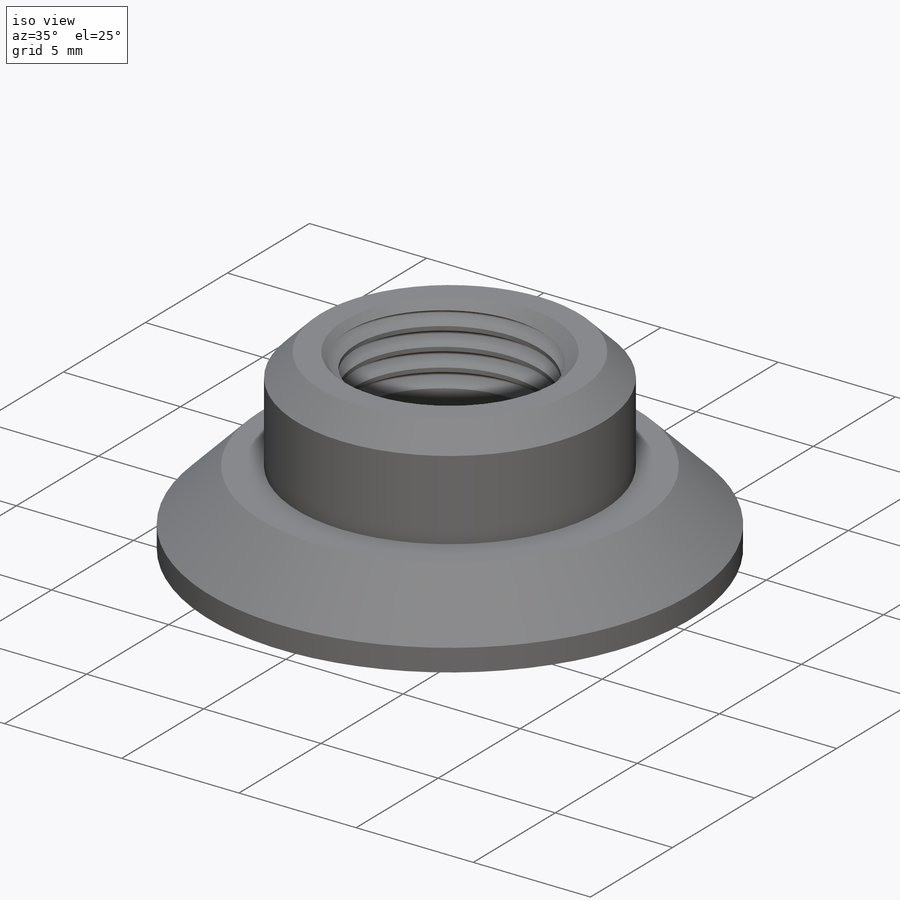
[diagram: iso view]
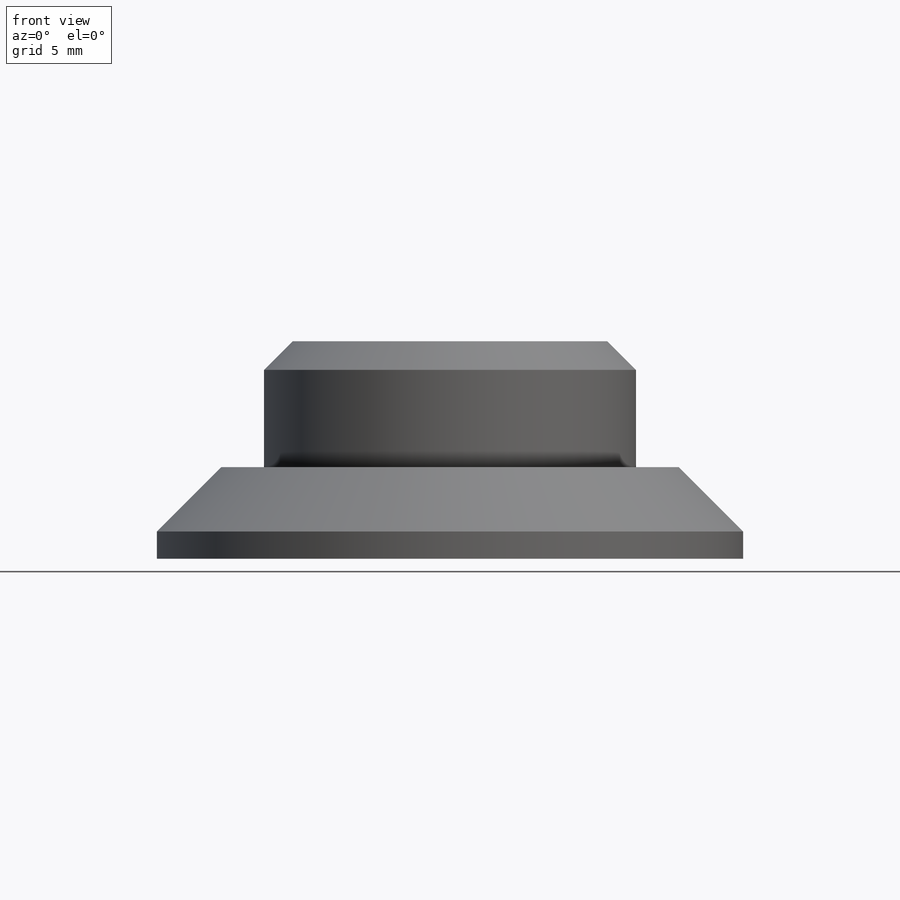
[diagram: front view]
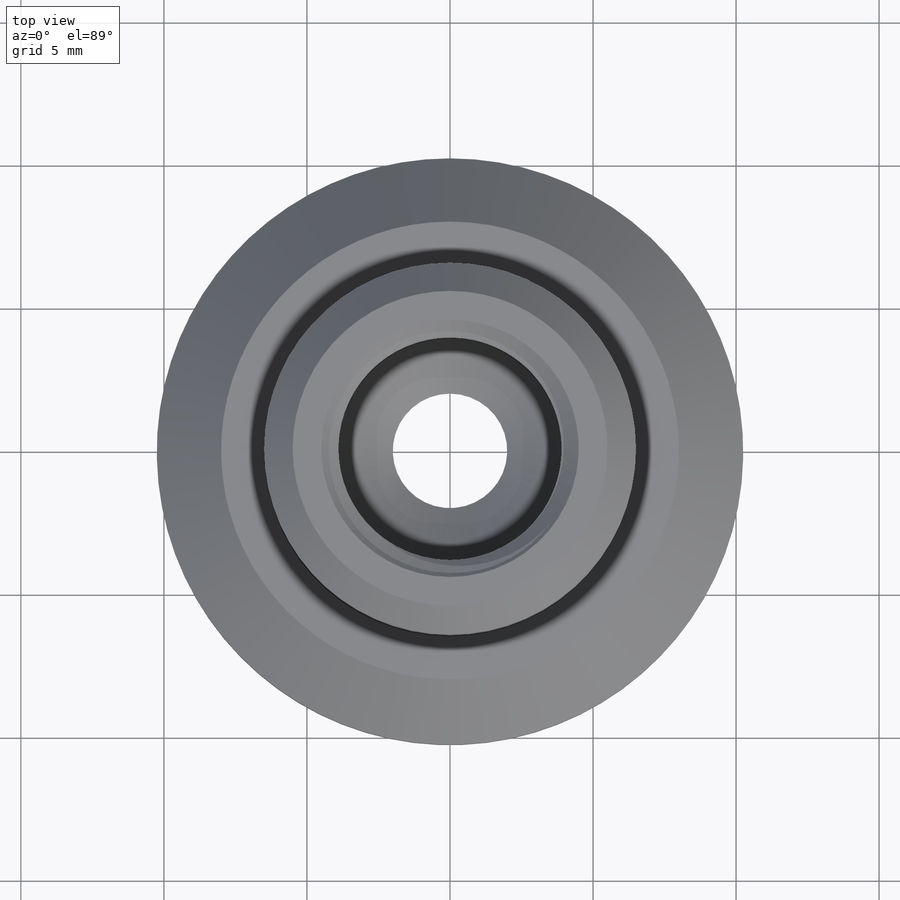
[diagram: top view]
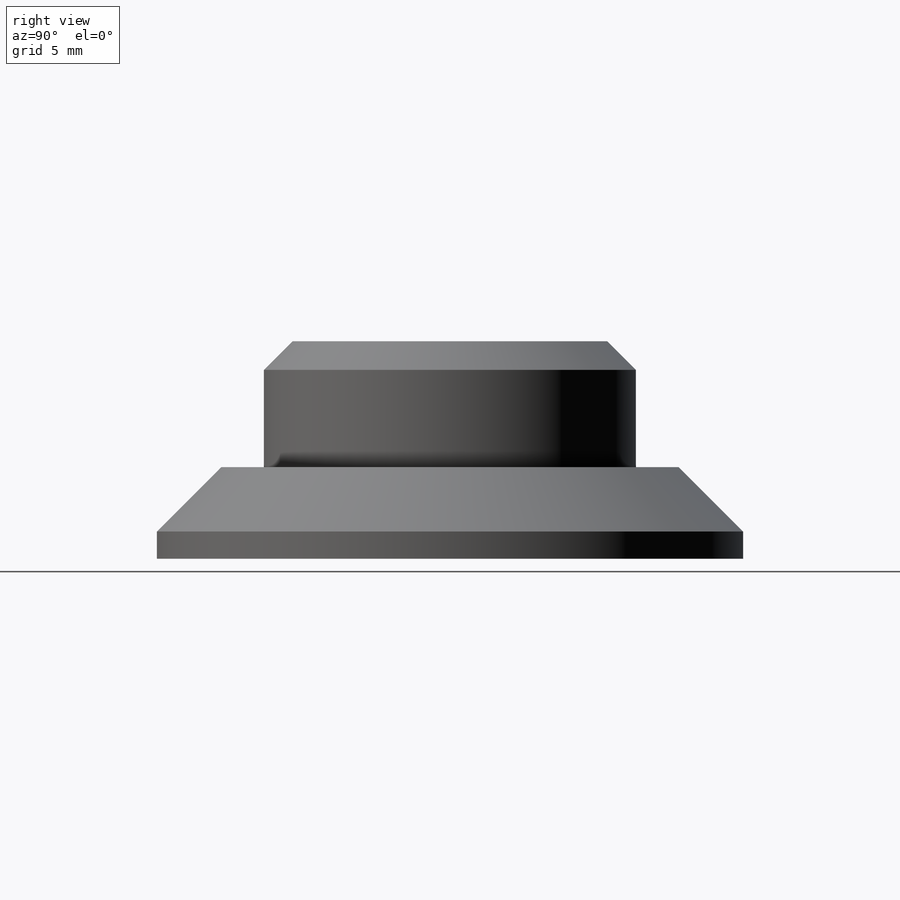
[diagram: right view]
SOLIDWORKS PART (.sldprt)
format: sldprt  version: not decoded by parser v0  size: 428,544 bytes
history: native  units: mm
features: sketch x3, material x1, revolve x1, helix x1, sweep x1, chamfer x1 (+13 scaffold rows collapsed)
feature tree (21):
  scaffold x13  (default folders/planes/origin — collapsed)
  material  "6061 Alloy"
  sketch  "Sketch1"  dims[c1.D4=3.0mm c1.D17=1.5mm c1.D1=10.5mm c1.D2=13.0mm c1.D3=20.5mm c1.D5=3.2mm c1.D6=16.0mm c1.D7=~1.875152mm c2.D7=45.0deg c2.D8=~0.967553mm c3.D8=45.0deg c3.D9=1.0mm c3.D10=7.6mm c3.D11=4.0mm c3.D12=~1.42004mm c4.D12=35.0deg c4.D13=7.8mm c4.D14=2.3mm c4.D15=6.3213mm c4.D16=9.0mm]
  revolve  "Revolve1"  Angle=360deg
  sketch  "Sketch2"  dims[D1=8.8mm]
  helix  "Helix/Spiral1"  Pitch=3.6mm
  sketch  "Sketch3"  dims[c1.D2=0.05mm c1.D1=~3.023613mm c2.D1=60.0deg c2.D3=0.75mm]
  sweep  "Cut-Sweep1"
  chamfer  "Chamfer1"  Distance=0.7mm
decode coverage: 6 of 7 modeling features carry decoded parameters
note: ~ marks probable driven/reference dimensions
note: suppression state not decoded; provenance and decode notes live in map.json
